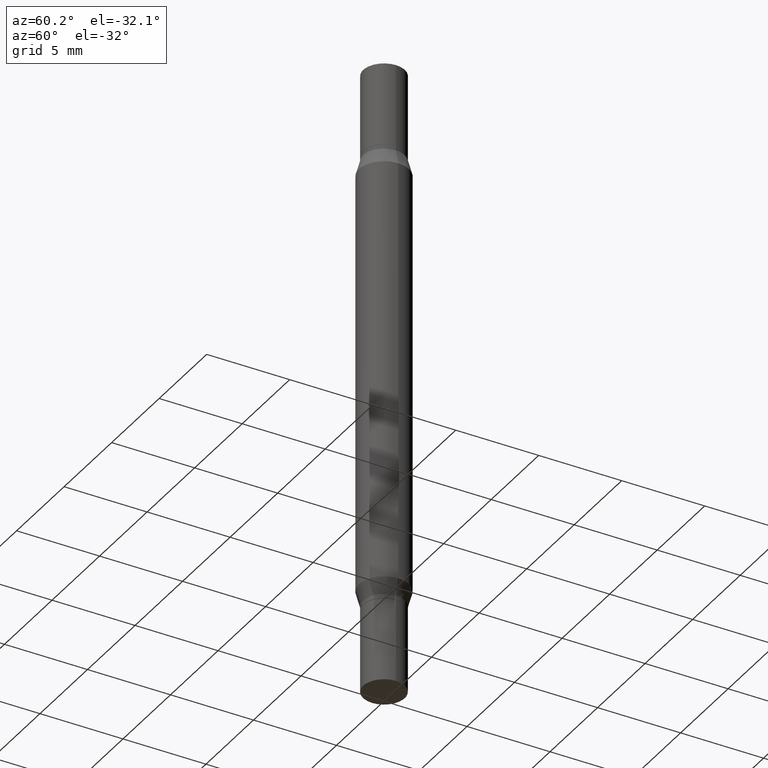
[diagram: clean part render]
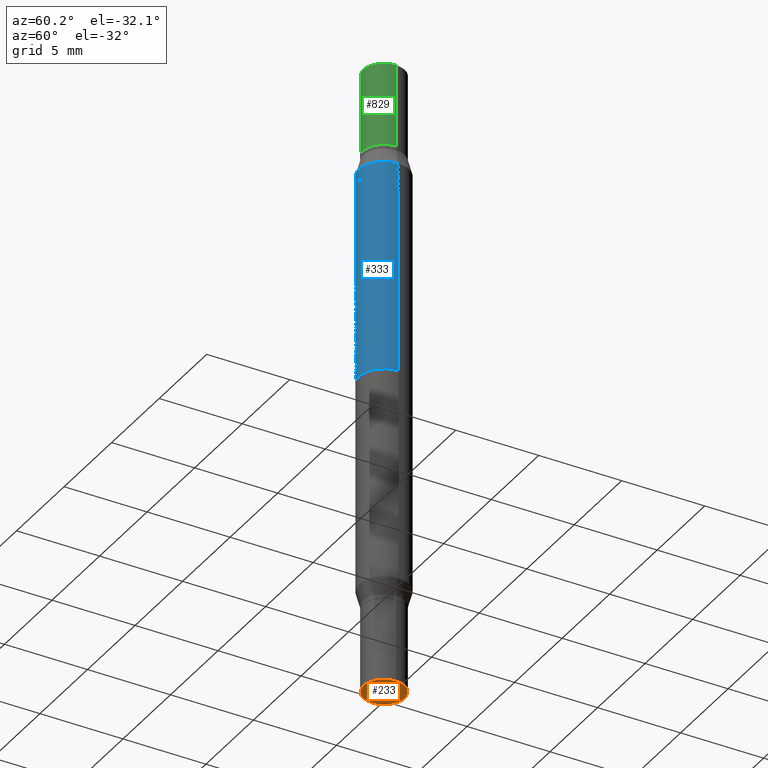
[diagram: same view with three faces highlighted in distinct colors, each labeled with its STEP entity id]
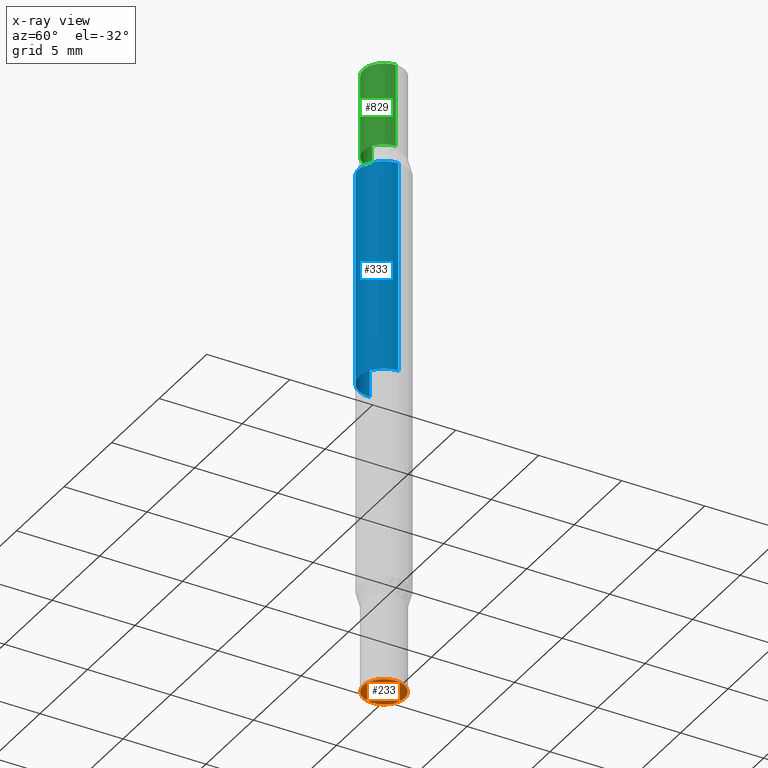
[diagram: x-ray of the same camera — body ghosted, the three highlighted faces saturated]
A machine part, auxiliary view with three faces highlighted in distinct colors.
The next image is the same camera in x-ray (body ghosted, the three faces saturated) — at least one of them is partly hidden behind the body in this view.
Their STEP definitions:

[orange] entity #233 — the highlighted planar face has unit normal (-0, 0, 1).
#22 = CIRCLE ( 'NONE', #101, 0.04920000000000000068 ) ;
#58 = DIRECTION ( 'NONE',  ( -2.445468806185136597E-29, 3.491481338843145583E-15, 1.000000000000000000 ) ) ;
#62 = VERTEX_POINT ( 'NONE', #521 ) ;
#93 = ORIENTED_EDGE ( 'NONE', *, *, #282, .F. ) ;
#100 = FACE_OUTER_BOUND ( 'NONE', #493, .T. ) ;
#101 = AXIS2_PLACEMENT_3D ( 'NONE', #147, #58, #748 ) ;
#107 = DIRECTION ( 'NONE',  ( 1.000000000000000000, -6.982962677686265922E-15, 4.876176775795935793E-29 ) ) ;
#147 = CARTESIAN_POINT ( 'NONE',  ( 3.658665880933582389E-29, -5.223605231043229660E-15, -1.496099999999999985 ) ) ;
#207 = CIRCLE ( 'NONE', #921, 0.04920000000000000068 ) ;
#233 = ADVANCED_FACE ( 'NONE', ( #100 ), #381, .F. ) ;
#273 = DIRECTION ( 'NONE',  ( 1.000000000000000000, -6.982962677686261977E-15, 0.000000000000000000 ) ) ;
#282 = EDGE_CURVE ( 'NONE', #62, #647, #22, .T. ) ;
#283 = DIRECTION ( 'NONE',  ( -2.445468806185136597E-29, 3.491481338843145583E-15, 1.000000000000000000 ) ) ;
#381 = PLANE ( 'NONE',  #721 ) ;
#454 = EDGE_CURVE ( 'NONE', #647, #62, #207, .T. ) ;
#493 = EDGE_LOOP ( 'NONE', ( #904, #93 ) ) ;
#521 = CARTESIAN_POINT ( 'NONE',  ( -0.04920000000000000068, -4.530281867240153147E-15, -1.496099999999999985 ) ) ;
#609 = CARTESIAN_POINT ( 'NONE',  ( 0.04920000000000000068, -5.567166994785393395E-15, -1.496099999999999985 ) ) ;
#611 = DIRECTION ( 'NONE',  ( -2.438088387897960049E-29, 3.491481338843145188E-15, 1.000000000000000000 ) ) ;
#647 = VERTEX_POINT ( 'NONE', #609 ) ;
#685 = CARTESIAN_POINT ( 'NONE',  ( 3.511898583110818647E-29, -5.433784355001249279E-15, -1.496099999999999985 ) ) ;
#721 = AXIS2_PLACEMENT_3D ( 'NONE', #685, #611, #107 ) ;
#748 = DIRECTION ( 'NONE',  ( 1.000000000000000000, -6.982962677686261977E-15, 0.000000000000000000 ) ) ;
#904 = ORIENTED_EDGE ( 'NONE', *, *, #454, .F. ) ;
#921 = AXIS2_PLACEMENT_3D ( 'NONE', #965, #283, #273 ) ;
#965 = CARTESIAN_POINT ( 'NONE',  ( 3.658665880933582389E-29, -5.223605231043229660E-15, -1.496099999999999985 ) ) ;

[blue] entity #333 — the highlighted cylindrical surface (edge-blend (fillet) strip) has radius 1.4999 mm, axis along (-0, -0, -1).
#10 = EDGE_CURVE ( 'NONE', #666, #502, #638, .T. ) ;
#15 = CARTESIAN_POINT ( 'NONE',  ( 0.000000000000000000, -5.223847416807283040E-15, -1.496099999999999985 ) ) ;
#24 = LINE ( 'NONE', #476, #482 ) ;
#49 = ORIENTED_EDGE ( 'NONE', *, *, #370, .F. ) ;
#56 = VERTEX_POINT ( 'NONE', #295 ) ;
#66 = ORIENTED_EDGE ( 'NONE', *, *, #807, .F. ) ;
#137 = DIRECTION ( 'NONE',  ( -2.445468806185136877E-29, -3.491805094961123683E-15, -1.000000000000000000 ) ) ;
#155 = VERTEX_POINT ( 'NONE', #680 ) ;
#223 = AXIS2_PLACEMENT_3D ( 'NONE', #486, #793, #332 ) ;
#253 = DIRECTION ( 'NONE',  ( 1.000000000000000000, -6.982962677686265133E-15, 0.000000000000000000 ) ) ;
#259 = CARTESIAN_POINT ( 'NONE',  ( 3.062556691798133272E-29, -8.509226700344482173E-16, -0.2437607004545535860 ) ) ;
#274 = LINE ( 'NONE', #579, #399 ) ;
#275 = EDGE_CURVE ( 'NONE', #155, #502, #274, .T. ) ;
#278 = CARTESIAN_POINT ( 'NONE',  ( -0.05905000000000000526, -1.326250236009622014E-15, -0.7480499999999999927 ) ) ;
#295 = CARTESIAN_POINT ( 'NONE',  ( 0.05904999999999999832, -1.263266616151821658E-15, -0.2437607004545535860 ) ) ;
#332 = DIRECTION ( 'NONE',  ( 0.000000000000000000, 1.000000000000000000, -4.626330217890369336E-15 ) ) ;
#333 = ADVANCED_FACE ( 'NONE', ( #695 ), #380, .T. ) ;
#370 = EDGE_CURVE ( 'NONE', #155, #56, #414, .T. ) ;
#380 = CYLINDRICAL_SURFACE ( 'NONE', #828, 0.05905000000000000526 ) ;
#399 = VECTOR ( 'NONE', #137, 39.37007874015748143 ) ;
#400 = DIRECTION ( 'NONE',  ( -2.445468806185136877E-29, -3.491805094961123683E-15, -1.000000000000000000 ) ) ;
#414 = CIRCLE ( 'NONE', #429, 0.05904999999999999832 ) ;
#429 = AXIS2_PLACEMENT_3D ( 'NONE', #259, #711, #253 ) ;
#476 = CARTESIAN_POINT ( 'NONE',  ( 0.05905000000000000526, -5.636191362924657961E-15, -1.496099999999999985 ) ) ;
#482 = VECTOR ( 'NONE', #400, 39.37007874015748143 ) ;
#486 = CARTESIAN_POINT ( 'NONE',  ( 1.829332940466791194E-29, -2.611802615521614830E-15, -0.7480499999999999927 ) ) ;
#502 = VERTEX_POINT ( 'NONE', #278 ) ;
#579 = CARTESIAN_POINT ( 'NONE',  ( -0.05905000000000000526, -4.818735010038875060E-15, -1.496099999999999985 ) ) ;
#598 = ORIENTED_EDGE ( 'NONE', *, *, #10, .F. ) ;
#638 = CIRCLE ( 'NONE', #223, 0.05905000000000000526 ) ;
#666 = VERTEX_POINT ( 'NONE', #833 ) ;
#680 = CARTESIAN_POINT ( 'NONE',  ( -0.05904999999999999832, -4.458102632660388560E-16, -0.2437607004545535860 ) ) ;
#695 = FACE_OUTER_BOUND ( 'NONE', #867, .T. ) ;
#700 = DIRECTION ( 'NONE',  ( 1.000000000000000000, -6.982962677686272233E-15, 0.000000000000000000 ) ) ;
#711 = DIRECTION ( 'NONE',  ( 2.445468806185136597E-29, 3.491805094961124077E-15, 1.000000000000000000 ) ) ;
#778 = DIRECTION ( 'NONE',  ( -2.445468806185136597E-29, -3.491805094961124077E-15, -1.000000000000000000 ) ) ;
#793 = DIRECTION ( 'NONE',  ( -0.000000000000000000, -3.491643216902134830E-15, -1.000000000000000000 ) ) ;
#807 = EDGE_CURVE ( 'NONE', #56, #666, #24, .T. ) ;
#828 = AXIS2_PLACEMENT_3D ( 'NONE', #15, #778, #700 ) ;
#833 = CARTESIAN_POINT ( 'NONE',  ( 0.05905000000000000526, -2.143706588895405113E-15, -0.7480499999999999927 ) ) ;
#867 = EDGE_LOOP ( 'NONE', ( #49, #927, #598, #66 ) ) ;
#927 = ORIENTED_EDGE ( 'NONE', *, *, #275, .T. ) ;

[green] entity #829 — the highlighted cylindrical surface (edge-blend (fillet) strip) has radius 1.2497 mm, axis along (-0, -0, -1).
#4 = CARTESIAN_POINT ( 'NONE',  ( 0.04920000000000000068, -3.433195779781105028E-16, 1.112302229232114997E-34 ) ) ;
#6 = LINE ( 'NONE', #301, #545 ) ;
#20 = AXIS2_PLACEMENT_3D ( 'NONE', #571, #410, #35 ) ;
#35 = DIRECTION ( 'NONE',  ( 1.000000000000000000, -6.982962677686266711E-15, 2.260776888683160490E-33 ) ) ;
#43 = ORIENTED_EDGE ( 'NONE', *, *, #481, .T. ) ;
#63 = CARTESIAN_POINT ( 'NONE',  ( -0.04920000000000000068, -4.886310915316924225E-15, -1.496099999999999985 ) ) ;
#135 = ORIENTED_EDGE ( 'NONE', *, *, #935, .F. ) ;
#152 = VERTEX_POINT ( 'NONE', #438 ) ;
#163 = VERTEX_POINT ( 'NONE', #4 ) ;
#175 = AXIS2_PLACEMENT_3D ( 'NONE', #568, #484, #929 ) ;
#190 = CIRCLE ( 'NONE', #20, 0.04920000000000000068 ) ;
#221 = EDGE_CURVE ( 'NONE', #968, #152, #288, .T. ) ;
#288 = CIRCLE ( 'NONE', #687, 0.04920000000000000068 ) ;
#301 = CARTESIAN_POINT ( 'NONE',  ( 0.04920000000000000068, -5.567409180549447565E-15, -1.496099999999999985 ) ) ;
#330 = VECTOR ( 'NONE', #668, 39.37007874015748143 ) ;
#350 = LINE ( 'NONE', #63, #330 ) ;
#383 = DIRECTION ( 'NONE',  ( -2.445468806185136877E-29, -3.491805094961123683E-15, -1.000000000000000000 ) ) ;
#395 = FACE_OUTER_BOUND ( 'NONE', #515, .T. ) ;
#406 = CYLINDRICAL_SURFACE ( 'NONE', #175, 0.04920000000000000068 ) ;
#410 = DIRECTION ( 'NONE',  ( 2.445468806185136597E-29, 3.491805094961124077E-15, 1.000000000000000000 ) ) ;
#438 = CARTESIAN_POINT ( 'NONE',  ( 0.04920000000000000068, -1.030856001175955426E-15, -0.1969000000000000195 ) ) ;
#439 = ORIENTED_EDGE ( 'NONE', *, *, #221, .T. ) ;
#481 = EDGE_CURVE ( 'NONE', #717, #968, #350, .T. ) ;
#484 = DIRECTION ( 'NONE',  ( -2.445468806185136597E-29, -3.491805094961124077E-15, -1.000000000000000000 ) ) ;
#515 = EDGE_LOOP ( 'NONE', ( #135, #43, #439, #773 ) ) ;
#536 = DIRECTION ( 'NONE',  ( 2.445468806185136597E-29, 3.491805094961124077E-15, 1.000000000000000000 ) ) ;
#545 = VECTOR ( 'NONE', #383, 39.37007874015748143 ) ;
#546 = DIRECTION ( 'NONE',  ( 1.000000000000000000, -6.982962677686266711E-15, 0.000000000000000000 ) ) ;
#568 = CARTESIAN_POINT ( 'NONE',  ( 0.000000000000000000, -5.223847416807283040E-15, -1.496099999999999985 ) ) ;
#571 = CARTESIAN_POINT ( 'NONE',  ( 3.658665880933582389E-29, 2.421857640538043390E-19, 0.000000000000000000 ) ) ;
#625 = EDGE_CURVE ( 'NONE', #163, #152, #6, .T. ) ;
#656 = CARTESIAN_POINT ( 'NONE',  ( -0.04920000000000000068, -5.989524344509276303E-18, -0.1969000000000000195 ) ) ;
#668 = DIRECTION ( 'NONE',  ( -2.445468806185136877E-29, -3.491805094961123683E-15, -1.000000000000000000 ) ) ;
#687 = AXIS2_PLACEMENT_3D ( 'NONE', #916, #536, #546 ) ;
#717 = VERTEX_POINT ( 'NONE', #853 ) ;
#773 = ORIENTED_EDGE ( 'NONE', *, *, #625, .F. ) ;
#829 = ADVANCED_FACE ( 'NONE', ( #395 ), #406, .T. ) ;
#853 = CARTESIAN_POINT ( 'NONE',  ( -0.04920000000000000068, -5.989524344509276303E-18, 1.224930569750488453E-30 ) ) ;
#916 = CARTESIAN_POINT ( 'NONE',  ( 3.177153072995728757E-29, -6.872942374337910995E-16, -0.1969000000000000195 ) ) ;
#929 = DIRECTION ( 'NONE',  ( 1.000000000000000000, -6.982962677686261977E-15, 0.000000000000000000 ) ) ;
#935 = EDGE_CURVE ( 'NONE', #717, #163, #190, .T. ) ;
#968 = VERTEX_POINT ( 'NONE', #656 ) ;